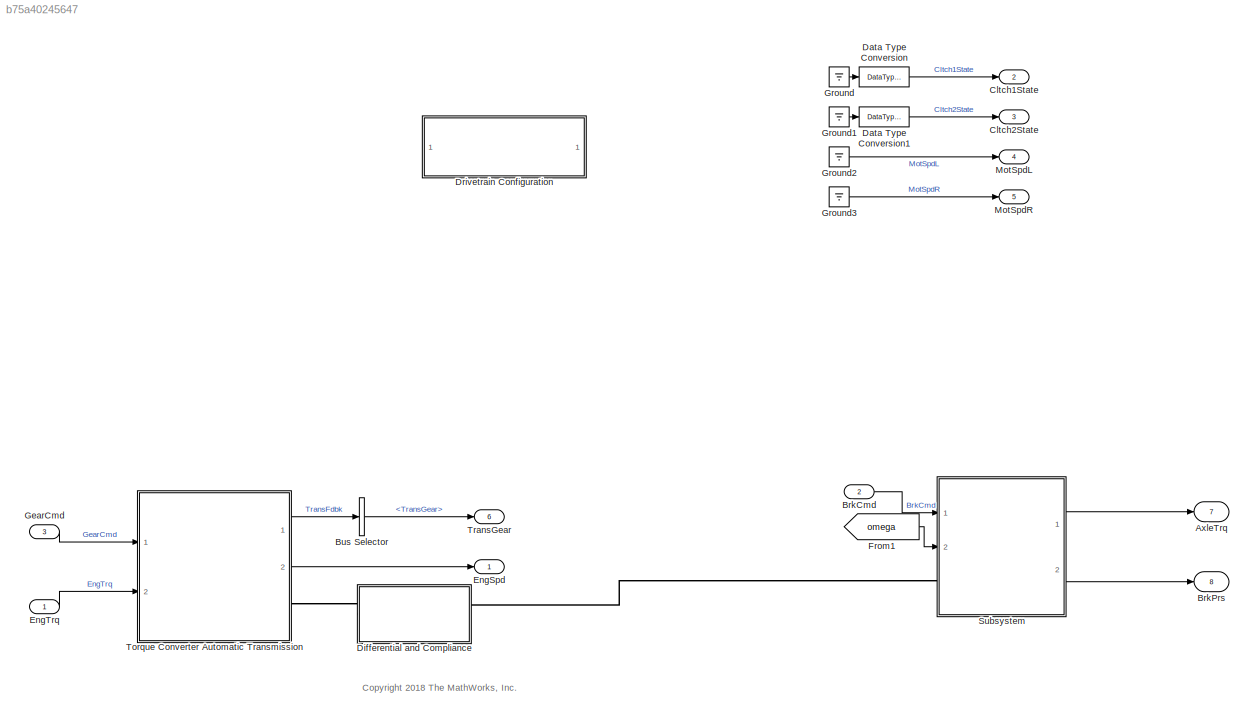
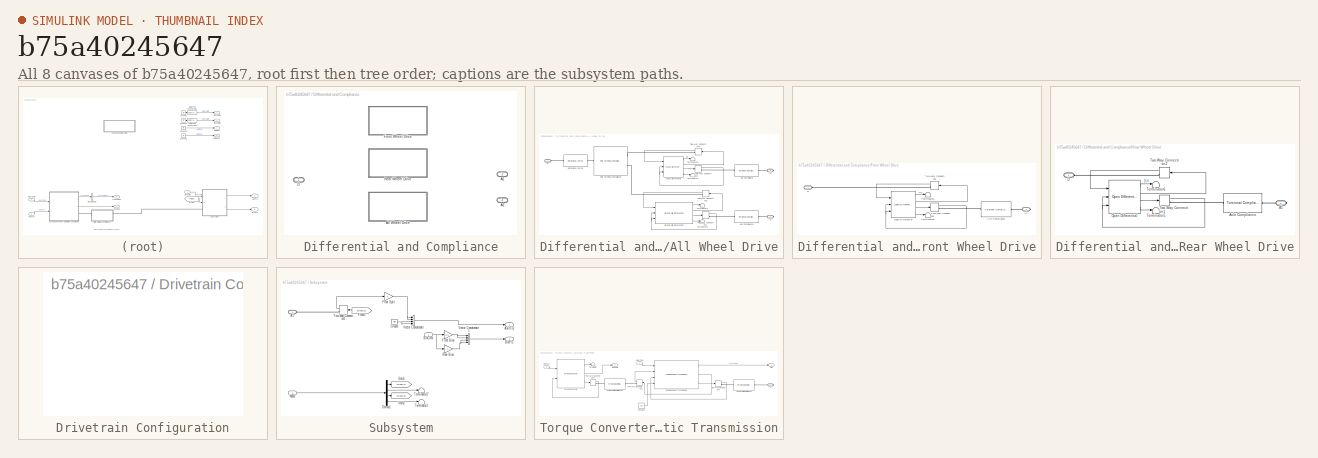
[diagram: thumbnail index - all 8 canvases of the model, root first then tree order]
MODEL slx_b75a40245647
KIND model
CONFIG AbsTol = auto
CONFIG EnableMultiTasking = off
CONFIG FixedStep = auto
CONFIG MaxStep = auto
CONFIG MinStep = auto
CONFIG RelTol = 1e-3
CONFIG SampleTimeConstraint = Unconstrained
CONFIG Solver = VariableStepAuto
CONFIG SolverName = VariableStepAuto
CONFIG StartTime = 0.0
CONFIG StopTime = 10.0
WORKSPACE source: MAT-file member
WORKSPACE Aeff = 0.0314159265359
BLOCK [Outport]  Cltch1State
  IconDisplay = Port number
  Port = 2
BLOCK [Outport]  Cltch2State
  IconDisplay = Port number
  Port = 3
BLOCK [Outport]  MotSpdL
  IconDisplay = Port number
  Port = 4
BLOCK [Outport]  MotSpdR
  IconDisplay = Port number
  Port = 5
BLOCK [Outport] AxleTrq
  IconDisplay = Port number
  Port = 7
BLOCK [Inport] BrkCmd
  IconDisplay = Port number
  Port = 2
BLOCK [Outport] BrkPrs
  IconDisplay = Port number
  Port = 8
BLOCK [BusSelector] Bus Selector
  OutputAsBus = off
  OutputSignals = Trans.TransGear
  Ports = [1, 1]
BLOCK [DataTypeConversion] Data Type Conversion
  OutDataTypeStr = boolean
  RndMeth = Floor
  SaturateOnIntegerOverflow = off
BLOCK [DataTypeConversion] Data Type Conversion1
  OutDataTypeStr = boolean
  RndMeth = Floor
  SaturateOnIntegerOverflow = off
BLOCK [SubSystem] Differential and Compliance
  LabelModeActiveChoice = 0
  Ports = [0, 0, 0, 0, 0, 1, 2]
  RequestExecContextInheritance = off
  Variant = on
  VariantControlMode = Label
BLOCK [PMIOPort] Differential and Compliance/A1
  Port = 2
  Side = Right
BLOCK [PMIOPort] Differential and Compliance/A2
  Port = 3
  Side = Right
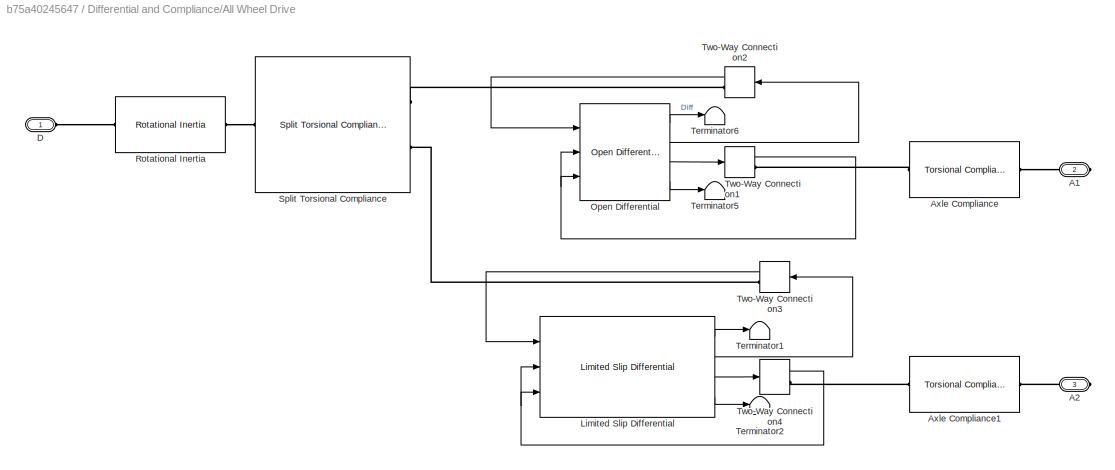
BLOCK [SubSystem] Differential and Compliance/All Wheel Drive
  Ports = [0, 0, 0, 0, 0, 1, 2]
  RequestExecContextInheritance = off
  VariantControl = 2
BLOCK [PMIOPort] Differential and Compliance/All Wheel Drive/A1
  Port = 2
  Side = Right
BLOCK [PMIOPort] Differential and Compliance/All Wheel Drive/A2
  Port = 3
  Side = Right
BLOCK [Reference] Differential and Compliance/All Wheel Drive/Axle Compliance  REF=autolibsharedcoupling/Torsional Compliance
  Ports = [0, 0, 0, 0, 0, 1, 1]
  SourceBlock = autolibsharedcoupling/Torsional Compliance
  SourceProductName = Powertrain Blockset
  SourceType = Torsional Compliance
BLOCK [Reference] Differential and Compliance/All Wheel Drive/Axle Compliance1  REF=autolibsharedcoupling/Torsional Compliance
  Ports = [0, 0, 0, 0, 0, 1, 1]
  SourceBlock = autolibsharedcoupling/Torsional Compliance
  SourceProductName = Powertrain Blockset
  SourceType = Torsional Compliance
BLOCK [PMIOPort] Differential and Compliance/All Wheel Drive/D
  Side = Left
BLOCK [Reference] Differential and Compliance/All Wheel Drive/Limited Slip Differential  REF=autolibshareddiff/Limited Slip Differential
  Ports = [3, 4]
  SourceBlock = autolibshareddiff/Limited Slip Differential
  SourceProductBaseCode = PW
  SourceProductName = Powertrain Blockset
  SourceType = Limited Slip Differential
BLOCK [Reference] Differential and Compliance/All Wheel Drive/Open Differential  REF=autolibshareddiff/Open Differential
  Ports = [3, 4]
  SourceBlock = autolibshareddiff/Open Differential
  SourceProductName = Powertrain Blockset
  SourceType = Open Differential
BLOCK [Reference] Differential and Compliance/All Wheel Drive/Rotational Inertia  REF=autolibsharedcoupling/Rotational Inertia
  Ports = [0, 0, 0, 0, 0, 1, 1]
  SourceBlock = autolibsharedcoupling/Rotational Inertia
  SourceProductBaseCode = PW
  SourceProductName = Powertrain Blockset
  SourceType = Rotational Inertia
BLOCK [Reference] Differential and Compliance/All Wheel Drive/Split Torsional Compliance  REF=autolibsharedcoupling/Split Torsional Compliance
  Ports = [0, 0, 0, 0, 0, 1, 2]
  SourceBlock = autolibsharedcoupling/Split Torsional Compliance
  SourceProductBaseCode = PW
  SourceProductName = Powertrain Blockset
  SourceType = Split Torsional Compliance
BLOCK [Terminator] Differential and Compliance/All Wheel Drive/Terminator1
BLOCK [Terminator] Differential and Compliance/All Wheel Drive/Terminator2
BLOCK [Terminator] Differential and Compliance/All Wheel Drive/Terminator5
BLOCK [Terminator] Differential and Compliance/All Wheel Drive/Terminator6
BLOCK [TwoWayConnection] Differential and Compliance/All Wheel Drive/Two-Way Connection1
  Ports = [1, 1, 0, 0, 0, 0, 1]
BLOCK [TwoWayConnection] Differential and Compliance/All Wheel Drive/Two-Way Connection2
  Ports = [1, 1, 0, 0, 0, 0, 1]
BLOCK [TwoWayConnection] Differential and Compliance/All Wheel Drive/Two-Way Connection3
  Ports = [1, 1, 0, 0, 0, 0, 1]
BLOCK [TwoWayConnection] Differential and Compliance/All Wheel Drive/Two-Way Connection4
  Ports = [1, 1, 0, 0, 0, 0, 1]
BLOCK [PMIOPort] Differential and Compliance/D
  Side = Left
BLOCK [SubSystem] Differential and Compliance/Front Wheel Drive
  Ports = [0, 0, 0, 0, 0, 1, 1]
  RequestExecContextInheritance = off
  VariantControl = 0
BLOCK [PMIOPort] Differential and Compliance/Front Wheel Drive/A1
  Port = 2
  Side = Right
BLOCK [Reference] Differential and Compliance/Front Wheel Drive/Axle Compliance  REF=autolibsharedcoupling/Torsional Compliance
  Ports = [0, 0, 0, 0, 0, 1, 1]
  SourceBlock = autolibsharedcoupling/Torsional Compliance
  SourceProductName = Powertrain Blockset
  SourceType = Torsional Compliance
BLOCK [PMIOPort] Differential and Compliance/Front Wheel Drive/D
  Side = Left
BLOCK [Reference] Differential and Compliance/Front Wheel Drive/Open Differential  REF=autolibshareddiff/Open Differential
  Ports = [3, 4]
  SourceBlock = autolibshareddiff/Open Differential
  SourceProductName = Powertrain Blockset
  SourceType = Open Differential
BLOCK [Terminator] Differential and Compliance/Front Wheel Drive/Terminator5
BLOCK [Terminator] Differential and Compliance/Front Wheel Drive/Terminator6
BLOCK [TwoWayConnection] Differential and Compliance/Front Wheel Drive/Two-Way Connection1
  Ports = [1, 1, 0, 0, 0, 0, 1]
BLOCK [TwoWayConnection] Differential and Compliance/Front Wheel Drive/Two-Way Connection2
  Ports = [1, 1, 0, 0, 0, 0, 1]
BLOCK [SubSystem] Differential and Compliance/Rear Wheel Drive
  Ports = [0, 0, 0, 0, 0, 1, 1]
  RequestExecContextInheritance = off
  VariantControl = 1
BLOCK [PMIOPort] Differential and Compliance/Rear Wheel Drive/A1
  Port = 2
  Side = Right
BLOCK [Reference] Differential and Compliance/Rear Wheel Drive/Axle Compliance  REF=autolibsharedcoupling/Torsional Compliance
  Ports = [0, 0, 0, 0, 0, 1, 1]
  SourceBlock = autolibsharedcoupling/Torsional Compliance
  SourceProductName = Powertrain Blockset
  SourceType = Torsional Compliance
BLOCK [PMIOPort] Differential and Compliance/Rear Wheel Drive/D
  Side = Left
BLOCK [Reference] Differential and Compliance/Rear Wheel Drive/Open Differential  REF=autolibshareddiff/Open Differential
  Ports = [3, 4]
  SourceBlock = autolibshareddiff/Open Differential
  SourceProductName = Powertrain Blockset
  SourceType = Open Differential
BLOCK [Terminator] Differential and Compliance/Rear Wheel Drive/Terminator5
BLOCK [Terminator] Differential and Compliance/Rear Wheel Drive/Terminator6
BLOCK [TwoWayConnection] Differential and Compliance/Rear Wheel Drive/Two-Way Connection1
  Ports = [1, 1, 0, 0, 0, 0, 1]
BLOCK [TwoWayConnection] Differential and Compliance/Rear Wheel Drive/Two-Way Connection2
  Ports = [1, 1, 0, 0, 0, 0, 1]
BLOCK [SubSystem] Drivetrain Configuration
  AttributesFormatString = Active Mode: %<drivetrainMode>
  Ports = []
  RequestExecContextInheritance = off
BLOCK [Outport] EngSpd
  BusOutputAsStruct = on
  IconDisplay = Port number
  SignalType = real
  VarSizeSig = No
BLOCK [Inport] EngTrq
  IconDisplay = Port number
BLOCK [From] From1
  GotoTag = omega
BLOCK [Inport] GearCmd
  IconDisplay = Port number
  Port = 3
BLOCK [Ground] Ground
BLOCK [Ground] Ground1
BLOCK [Ground] Ground2
BLOCK [Ground] Ground3
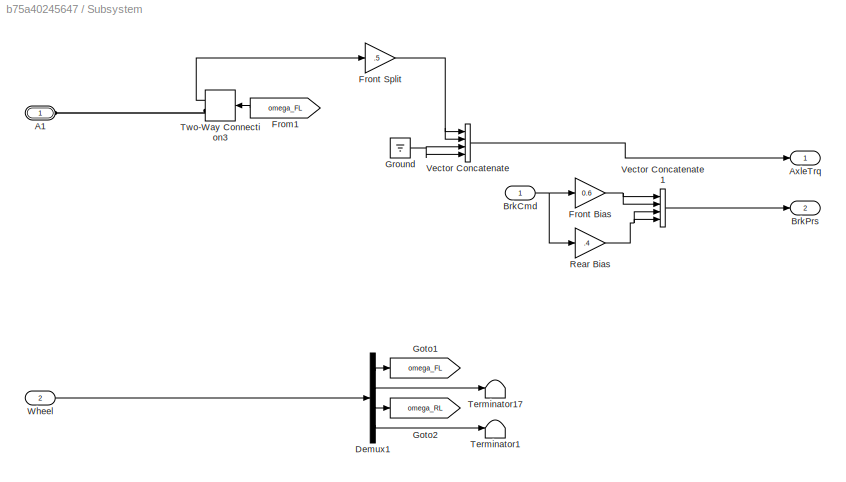
BLOCK [SubSystem] Subsystem
  Ports = [2, 2, 0, 0, 0, 1]
  RequestExecContextInheritance = off
BLOCK [PMIOPort] Subsystem/A1
  Side = Left
BLOCK [Outport] Subsystem/AxleTrq
  IconDisplay = Port number
BLOCK [Inport] Subsystem/BrkCmd
  IconDisplay = Port number
BLOCK [Outport] Subsystem/BrkPrs
  IconDisplay = Port number
  Port = 2
BLOCK [Demux] Subsystem/Demux1
  DisplayOption = bar
  Ports = [1, 4]
BLOCK [From] Subsystem/From1
  GotoTag = omega_FL
BLOCK [Gain] Subsystem/Front Bias
  Gain = 0.6
  OutDataTypeStr = Inherit: Inherit via internal rule
  ParamDataTypeStr = Inherit: Inherit via internal rule
  SaturateOnIntegerOverflow = off
BLOCK [Gain] Subsystem/Front Split
  Gain = .5
  OutDataTypeStr = Inherit: Inherit via internal rule
  ParamDataTypeStr = Inherit: Inherit via internal rule
  SaturateOnIntegerOverflow = off
BLOCK [Goto] Subsystem/Goto1
  GotoTag = omega_FL
BLOCK [Goto] Subsystem/Goto2
  GotoTag = omega_RL
BLOCK [Ground] Subsystem/Ground
BLOCK [Gain] Subsystem/Rear Bias
  Gain = .4
  OutDataTypeStr = Inherit: Inherit via internal rule
  ParamDataTypeStr = Inherit: Inherit via internal rule
  SaturateOnIntegerOverflow = off
BLOCK [Terminator] Subsystem/Terminator1
BLOCK [Terminator] Subsystem/Terminator17
BLOCK [TwoWayConnection] Subsystem/Two-Way Connection3
  Ports = [1, 1, 0, 0, 0, 0, 1]
BLOCK [Concatenate] Subsystem/Vector Concatenate
  NumInputs = 4
  Ports = [4, 1]
BLOCK [Concatenate] Subsystem/Vector Concatenate1
  NumInputs = 4
  Ports = [4, 1]
BLOCK [Inport] Subsystem/Wheel
  IconDisplay = Port number
  Port = 2
BLOCK [SubSystem] Torque Converter Automatic Transmission
  Ports = [2, 2, 0, 0, 0, 0, 1]
  RequestExecContextInheritance = off
BLOCK [Constant] Torque Converter Automatic Transmission/Constant
  Value = 313
BLOCK [Reference] Torque Converter Automatic Transmission/Driveshaft Compliance  REF=autolibsharedcoupling/Torsional Compliance
  Ports = [0, 0, 0, 0, 0, 1, 1]
  SourceBlock = autolibsharedcoupling/Torsional Compliance
  SourceProductName = Powertrain Blockset
  SourceType = Torsional Compliance
BLOCK [Reference] Torque Converter Automatic Transmission/Driveshaft Compliance1  REF=autolibsharedcoupling/Torsional Compliance
  Ports = [0, 0, 0, 0, 0, 1, 1]
  SourceBlock = autolibsharedcoupling/Torsional Compliance
  SourceProductName = Powertrain Blockset
  SourceType = Torsional Compliance
BLOCK [Outport] Torque Converter Automatic Transmission/EngSpd
  IconDisplay = Port number
  Port = 2
BLOCK [Inport] Torque Converter Automatic Transmission/EngTrq
  IconDisplay = Port number
  Port = 2
BLOCK [Inport] Torque Converter Automatic Transmission/GearCmd
  IconDisplay = Port number
BLOCK [Reference] Torque Converter Automatic Transmission/Ideal Fixed Gear Transmission  REF=autolibsharedtransfixedgear/Ideal Fixed Gear Transmission
  Ports = [4, 3]
  SourceBlock = autolibsharedtransfixedgear/Ideal Fixed Gear Transmission
  SourceProductBaseCode = PW
  SourceProductName = Powertrain Blockset
  SourceType = Ideal Fixed Gear Transmission
BLOCK [Outport] Torque Converter Automatic Transmission/Info
  IconDisplay = Port number
BLOCK [PMIOPort] Torque Converter Automatic Transmission/T
  Side = Right
BLOCK [Terminator] Torque Converter Automatic Transmission/Terminator
BLOCK [Reference] Torque Converter Automatic Transmission/Torque Converter  REF=autolibtrqconv/Torque Converter
  AttributesFormatString = Lock-up type:  %<TCType>
  Ports = [2, 3]
  SourceBlock = autolibtrqconv/Torque Converter
  SourceProductBaseCode = PW
  SourceProductName = Powertrain Blockset
  SourceType = Torque Converter
BLOCK [TwoWayConnection] Torque Converter Automatic Transmission/Two-Way Connection1
  Ports = [1, 1, 0, 0, 0, 0, 1]
BLOCK [TwoWayConnection] Torque Converter Automatic Transmission/Two-Way Connection2
  Ports = [1, 1, 0, 0, 0, 0, 1]
BLOCK [TwoWayConnection] Torque Converter Automatic Transmission/Two-Way Connection3
  Ports = [1, 1, 0, 0, 0, 0, 1]
BLOCK [Outport] TransGear
  BusOutputAsStruct = on
  IconDisplay = Port number
  Port = 6
  SignalType = real
  VarSizeSig = No
ANNOTATION (root): <copyright redacted>
LINE BrkCmd:1 -> Subsystem:1
LINE Bus Selector:1 -> TransGear:1
LINE Data Type Conversion1:1 ->  Cltch2State:1
LINE Data Type Conversion:1 ->  Cltch1State:1
LINE Differential and Compliance/All Wheel Drive/Limited Slip Differential:1 -> Differential and Compliance/All Wheel Drive/Terminator1:1
LINE Differential and Compliance/All Wheel Drive/Limited Slip Differential:2 -> Differential and Compliance/All Wheel Drive/Two-Way Connection3:1
LINE Differential and Compliance/All Wheel Drive/Limited Slip Differential:3 -> Differential and Compliance/All Wheel Drive/Two-Way Connection4:1
LINE Differential and Compliance/All Wheel Drive/Limited Slip Differential:4 -> Differential and Compliance/All Wheel Drive/Terminator2:1
LINE Differential and Compliance/All Wheel Drive/Open Differential:1 -> Differential and Compliance/All Wheel Drive/Terminator6:1
LINE Differential and Compliance/All Wheel Drive/Open Differential:2 -> Differential and Compliance/All Wheel Drive/Two-Way Connection2:1
LINE Differential and Compliance/All Wheel Drive/Open Differential:3 -> Differential and Compliance/All Wheel Drive/Two-Way Connection1:1
LINE Differential and Compliance/All Wheel Drive/Open Differential:4 -> Differential and Compliance/All Wheel Drive/Terminator5:1
NET Differential and Compliance/All Wheel Drive/Two-Way Connection1:1 -> Differential and Compliance/All Wheel Drive/Open Differential:2, Differential and Compliance/All Wheel Drive/Open Differential:3
LINE Differential and Compliance/All Wheel Drive/Two-Way Connection2:1 -> Differential and Compliance/All Wheel Drive/Open Differential:1
LINE Differential and Compliance/All Wheel Drive/Two-Way Connection3:1 -> Differential and Compliance/All Wheel Drive/Limited Slip Differential:1
NET Differential and Compliance/All Wheel Drive/Two-Way Connection4:1 -> Differential and Compliance/All Wheel Drive/Limited Slip Differential:2, Differential and Compliance/All Wheel Drive/Limited Slip Differential:3
LINE Differential and Compliance/Front Wheel Drive/Open Differential:1 -> Differential and Compliance/Front Wheel Drive/Terminator6:1
LINE Differential and Compliance/Front Wheel Drive/Open Differential:2 -> Differential and Compliance/Front Wheel Drive/Two-Way Connection2:1
LINE Differential and Compliance/Front Wheel Drive/Open Differential:3 -> Differential and Compliance/Front Wheel Drive/Two-Way Connection1:1
LINE Differential and Compliance/Front Wheel Drive/Open Differential:4 -> Differential and Compliance/Front Wheel Drive/Terminator5:1
NET Differential and Compliance/Front Wheel Drive/Two-Way Connection1:1 -> Differential and Compliance/Front Wheel Drive/Open Differential:2, Differential and Compliance/Front Wheel Drive/Open Differential:3
LINE Differential and Compliance/Front Wheel Drive/Two-Way Connection2:1 -> Differential and Compliance/Front Wheel Drive/Open Differential:1
LINE Differential and Compliance/Rear Wheel Drive/Open Differential:1 -> Differential and Compliance/Rear Wheel Drive/Terminator6:1
LINE Differential and Compliance/Rear Wheel Drive/Open Differential:2 -> Differential and Compliance/Rear Wheel Drive/Two-Way Connection2:1
LINE Differential and Compliance/Rear Wheel Drive/Open Differential:3 -> Differential and Compliance/Rear Wheel Drive/Two-Way Connection1:1
LINE Differential and Compliance/Rear Wheel Drive/Open Differential:4 -> Differential and Compliance/Rear Wheel Drive/Terminator5:1
NET Differential and Compliance/Rear Wheel Drive/Two-Way Connection1:1 -> Differential and Compliance/Rear Wheel Drive/Open Differential:2, Differential and Compliance/Rear Wheel Drive/Open Differential:3
LINE Differential and Compliance/Rear Wheel Drive/Two-Way Connection2:1 -> Differential and Compliance/Rear Wheel Drive/Open Differential:1
LINE EngTrq:1 -> Torque Converter Automatic Transmission:2
LINE From1:1 -> Subsystem:2
LINE GearCmd:1 -> Torque Converter Automatic Transmission:1
LINE Ground1:1 -> Data Type Conversion1:1
LINE Ground2:1 ->  MotSpdL:1
LINE Ground3:1 ->  MotSpdR:1
LINE Ground:1 -> Data Type Conversion:1
NET Subsystem/BrkCmd:1 -> Subsystem/Front Bias:1, Subsystem/Rear Bias:1
LINE Subsystem/Demux1:1 -> Subsystem/Goto1:1
LINE Subsystem/Demux1:2 -> Subsystem/Terminator17:1
LINE Subsystem/Demux1:3 -> Subsystem/Goto2:1
LINE Subsystem/Demux1:4 -> Subsystem/Terminator1:1
LINE Subsystem/From1:1 -> Subsystem/Two-Way Connection3:1
NET Subsystem/Front Bias:1 -> Subsystem/Vector Concatenate1:1, Subsystem/Vector Concatenate1:2
NET Subsystem/Front Split:1 -> Subsystem/Vector Concatenate:1, Subsystem/Vector Concatenate:2
NET Subsystem/Ground:1 -> Subsystem/Vector Concatenate:3, Subsystem/Vector Concatenate:4
NET Subsystem/Rear Bias:1 -> Subsystem/Vector Concatenate1:3, Subsystem/Vector Concatenate1:4
LINE Subsystem/Two-Way Connection3:1 -> Subsystem/Front Split:1
LINE Subsystem/Vector Concatenate1:1 -> Subsystem/BrkPrs:1
LINE Subsystem/Vector Concatenate:1 -> Subsystem/AxleTrq:1
LINE Subsystem/Wheel:1 -> Subsystem/Demux1:1
LINE Subsystem:1 -> AxleTrq:1
LINE Subsystem:2 -> BrkPrs:1
LINE Torque Converter Automatic Transmission/Constant:1 -> Torque Converter Automatic Transmission/Ideal Fixed Gear Transmission:4
LINE Torque Converter Automatic Transmission/EngTrq:1 -> Torque Converter Automatic Transmission/Torque Converter:1
LINE Torque Converter Automatic Transmission/GearCmd:1 -> Torque Converter Automatic Transmission/Ideal Fixed Gear Transmission:1
LINE Torque Converter Automatic Transmission/Ideal Fixed Gear Transmission:1 -> Torque Converter Automatic Transmission/Info:1
LINE Torque Converter Automatic Transmission/Ideal Fixed Gear Transmission:2 -> Torque Converter Automatic Transmission/Two-Way Connection3:1
LINE Torque Converter Automatic Transmission/Ideal Fixed Gear Transmission:3 -> Torque Converter Automatic Transmission/Two-Way Connection2:1
LINE Torque Converter Automatic Transmission/Torque Converter:1 -> Torque Converter Automatic Transmission/Terminator:1
LINE Torque Converter Automatic Transmission/Torque Converter:2 -> Torque Converter Automatic Transmission/EngSpd:1
LINE Torque Converter Automatic Transmission/Torque Converter:3 -> Torque Converter Automatic Transmission/Two-Way Connection1:1
LINE Torque Converter Automatic Transmission/Two-Way Connection1:1 -> Torque Converter Automatic Transmission/Torque Converter:2
LINE Torque Converter Automatic Transmission/Two-Way Connection2:1 -> Torque Converter Automatic Transmission/Ideal Fixed Gear Transmission:3
LINE Torque Converter Automatic Transmission/Two-Way Connection3:1 -> Torque Converter Automatic Transmission/Ideal Fixed Gear Transmission:2
LINE Torque Converter Automatic Transmission:1 -> Bus Selector:1
LINE Torque Converter Automatic Transmission:2 -> EngSpd:1
PLINE Differential and Compliance/All Wheel Drive/A1:RConn1 -- Differential and Compliance/All Wheel Drive/Axle Compliance:RConn1
PLINE Differential and Compliance/All Wheel Drive/A2:RConn1 -- Differential and Compliance/All Wheel Drive/Axle Compliance1:RConn1
PLINE Differential and Compliance/All Wheel Drive/Axle Compliance1:LConn1 -- Differential and Compliance/All Wheel Drive/Two-Way Connection4:RConn1
PLINE Differential and Compliance/All Wheel Drive/Axle Compliance:LConn1 -- Differential and Compliance/All Wheel Drive/Two-Way Connection1:RConn1
PLINE Differential and Compliance/All Wheel Drive/D:RConn1 -- Differential and Compliance/All Wheel Drive/Rotational Inertia:LConn1
PLINE Differential and Compliance/All Wheel Drive/Rotational Inertia:RConn1 -- Differential and Compliance/All Wheel Drive/Split Torsional Compliance:LConn1
PLINE Differential and Compliance/All Wheel Drive/Split Torsional Compliance:RConn1 -- Differential and Compliance/All Wheel Drive/Two-Way Connection2:RConn1
PLINE Differential and Compliance/All Wheel Drive/Split Torsional Compliance:RConn2 -- Differential and Compliance/All Wheel Drive/Two-Way Connection3:RConn1
PLINE Differential and Compliance/Front Wheel Drive/A1:RConn1 -- Differential and Compliance/Front Wheel Drive/Axle Compliance:RConn1
PLINE Differential and Compliance/Front Wheel Drive/Axle Compliance:LConn1 -- Differential and Compliance/Front Wheel Drive/Two-Way Connection1:RConn1
PLINE Differential and Compliance/Front Wheel Drive/D:RConn1 -- Differential and Compliance/Front Wheel Drive/Two-Way Connection2:RConn1
PLINE Differential and Compliance/Rear Wheel Drive/A1:RConn1 -- Differential and Compliance/Rear Wheel Drive/Axle Compliance:RConn1
PLINE Differential and Compliance/Rear Wheel Drive/Axle Compliance:LConn1 -- Differential and Compliance/Rear Wheel Drive/Two-Way Connection1:RConn1
PLINE Differential and Compliance/Rear Wheel Drive/D:RConn1 -- Differential and Compliance/Rear Wheel Drive/Two-Way Connection2:RConn1
PLINE Differential and Compliance:LConn1 -- Torque Converter Automatic Transmission:RConn1
PLINE Differential and Compliance:RConn1 -- Subsystem:LConn1
PLINE Subsystem/A1:RConn1 -- Subsystem/Two-Way Connection3:RConn1
PLINE Torque Converter Automatic Transmission/Driveshaft Compliance1:LConn1 -- Torque Converter Automatic Transmission/Two-Way Connection1:RConn1
PLINE Torque Converter Automatic Transmission/Driveshaft Compliance1:RConn1 -- Torque Converter Automatic Transmission/Two-Way Connection3:RConn1
PLINE Torque Converter Automatic Transmission/Driveshaft Compliance:LConn1 -- Torque Converter Automatic Transmission/Two-Way Connection2:RConn1
PLINE Torque Converter Automatic Transmission/Driveshaft Compliance:RConn1 -- Torque Converter Automatic Transmission/T:RConn1
note: NET lines group one-source signal fan-out (src -> all destinations, sorted); 1:1 wires keep LINE
